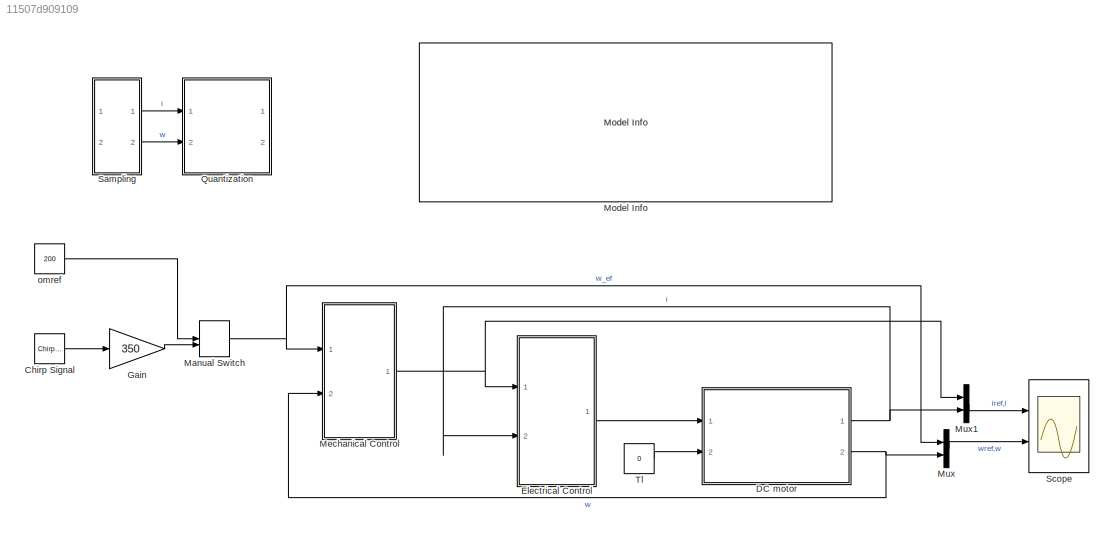
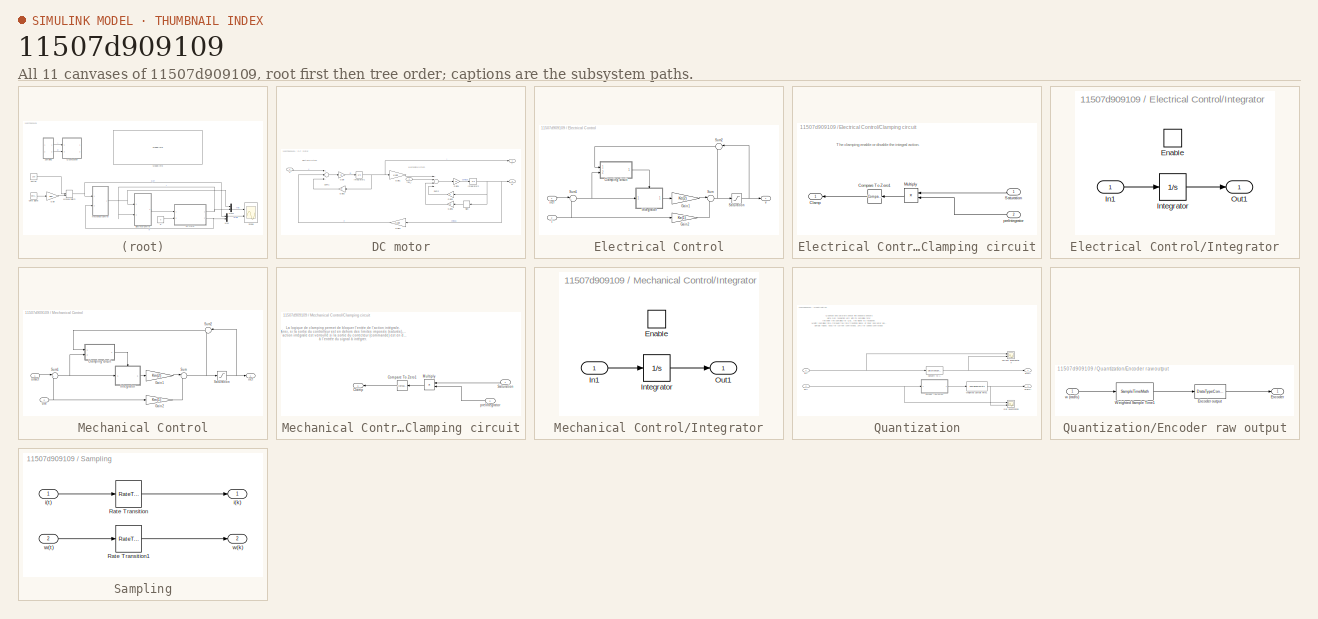
[diagram: thumbnail index - all 11 canvases of the model, root first then tree order]
MODEL slx_11507d909109
KIND model
CONFIG AbsTol = auto
CONFIG EnableMultiTasking = off
CONFIG FixedStep = auto
CONFIG MaxStep = Ts
CONFIG MinStep = auto
CONFIG RelTol = 1e-3
CONFIG SampleTimeConstraint = Unconstrained
CONFIG Solver = VariableStepAuto
CONFIG SolverName = VariableStepAuto
CONFIG StartTime = 0.0
CONFIG StopTime = Tf
BLOCK [Reference] Chirp Signal  REF=simulink/Sources/Chirp Signal
  Ports = [0, 1]
  SourceBlock = simulink/Sources/Chirp Signal
  SourceProductBaseCode = SL
  SourceProductName = Simulink
  SourceType = chirp
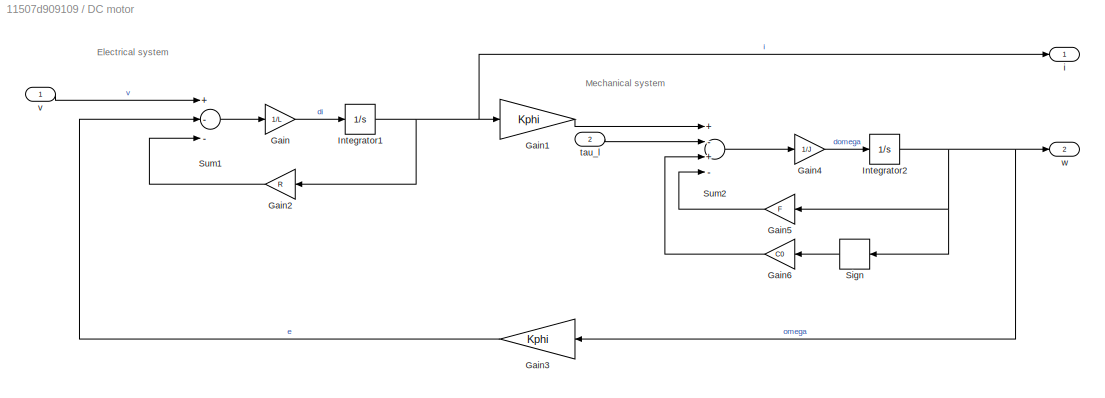
BLOCK [SubSystem] DC motor
  Ports = [2, 2]
  RequestExecContextInheritance = off
BLOCK [Gain] DC motor/Gain
  Gain = 1/L
  OutDataTypeStr = Inherit: Inherit via internal rule
  ParamDataTypeStr = Inherit: Inherit via internal rule
  SaturateOnIntegerOverflow = off
BLOCK [Gain] DC motor/Gain1
  Gain = Kphi
  OutDataTypeStr = Inherit: Inherit via internal rule
  ParamDataTypeStr = Inherit: Inherit via internal rule
  SaturateOnIntegerOverflow = off
BLOCK [Gain] DC motor/Gain2
  Gain = R
  OutDataTypeStr = Inherit: Inherit via internal rule
  ParamDataTypeStr = Inherit: Inherit via internal rule
  SaturateOnIntegerOverflow = off
BLOCK [Gain] DC motor/Gain3  
  Gain = Kphi
  OutDataTypeStr = Inherit: Inherit via internal rule
  ParamDataTypeStr = Inherit: Inherit via internal rule
  SaturateOnIntegerOverflow = off
BLOCK [Gain] DC motor/Gain4
  Gain = 1/J
  OutDataTypeStr = Inherit: Inherit via internal rule
  ParamDataTypeStr = Inherit: Inherit via internal rule
  SaturateOnIntegerOverflow = off
BLOCK [Gain] DC motor/Gain5
  Gain = F
  OutDataTypeStr = Inherit: Inherit via internal rule
  ParamDataTypeStr = Inherit: Inherit via internal rule
  SaturateOnIntegerOverflow = off
BLOCK [Gain] DC motor/Gain6
  Gain = C0
  OutDataTypeStr = Inherit: Inherit via internal rule
  ParamDataTypeStr = Inherit: Inherit via internal rule
  SaturateOnIntegerOverflow = off
BLOCK [Integrator] DC motor/Integrator1
  Ports = [1, 1]
BLOCK [Integrator] DC motor/Integrator2
  Ports = [1, 1]
BLOCK [Signum] DC motor/Sign
BLOCK [Sum] DC motor/Sum1
  InputSameDT = off
  Inputs = +--
  OutDataTypeStr = Inherit: Inherit via internal rule
  Ports = [3, 1]
  SaturateOnIntegerOverflow = off
BLOCK [Sum] DC motor/Sum2
  InputSameDT = off
  Inputs = +-+-
  OutDataTypeStr = Inherit: Inherit via internal rule
  Ports = [4, 1]
  SaturateOnIntegerOverflow = off
BLOCK [Outport] DC motor/i
  IconDisplay = Port number
BLOCK [Inport] DC motor/tau_l
  IconDisplay = Port number
  Port = 2
BLOCK [Inport] DC motor/v
  IconDisplay = Port number
  SampleTime = 0
BLOCK [Outport] DC motor/w
  IconDisplay = Port number
  Port = 2
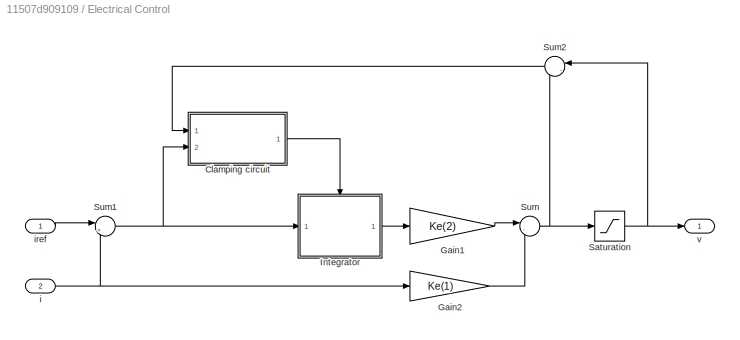
BLOCK [SubSystem] Electrical Control
  Ports = [2, 1]
  RequestExecContextInheritance = off
BLOCK [SubSystem] Electrical Control/Clamping circuit
  Ports = [2, 1]
  RequestExecContextInheritance = off
BLOCK [Outport] Electrical Control/Clamping circuit/Clamp
  DisableCoverage = on
  IconDisplay = Port number
BLOCK [Reference] Electrical Control/Clamping circuit/Compare To Zero1  REF=simulink/Logic and Bit
Operations/Compare
To Zero
  Ports = [1, 1]
  SourceBlock = simulink/Logic and Bit\nOperations/Compare\nTo Zero
  SourceProductBaseCode = SL
  SourceProductName = Simulink
  SourceType = Compare To Zero
BLOCK [Product] Electrical Control/Clamping circuit/Multiply
  InputSameDT = off
  OutDataTypeStr = Inherit: Inherit via internal rule
  Ports = [2, 1]
  RndMeth = Floor
  SaturateOnIntegerOverflow = off
BLOCK [Inport] Electrical Control/Clamping circuit/Saturation
  DisableCoverage = on
  IconDisplay = Port number
BLOCK [Inport] Electrical Control/Clamping circuit/preIntegrator
  DisableCoverage = on
  IconDisplay = Port number
  Port = 2
  VarSizeSig = No
BLOCK [Gain] Electrical Control/Gain1
  Gain = Ke(2)
  OutDataTypeStr = Inherit: Inherit via internal rule
  ParamDataTypeStr = Inherit: Inherit via internal rule
  SaturateOnIntegerOverflow = off
BLOCK [Gain] Electrical Control/Gain2
  Gain = Ke(1)
  OutDataTypeStr = Inherit: Inherit via internal rule
  ParamDataTypeStr = Inherit: Inherit via internal rule
  SaturateOnIntegerOverflow = off
BLOCK [SubSystem] Electrical Control/Integrator
  Ports = [1, 1, 1]
  RequestExecContextInheritance = off
BLOCK [EnablePort] Electrical Control/Integrator/Enable
  Ports = []
BLOCK [Inport] Electrical Control/Integrator/In1
  IconDisplay = Port number
BLOCK [Integrator] Electrical Control/Integrator/Integrator
  Ports = [1, 1]
BLOCK [Outport] Electrical Control/Integrator/Out1
  IconDisplay = Port number
BLOCK [Saturate] Electrical Control/Saturation
  InputPortMap = u0
  LowerLimit = Vmin
  Ports = [1, 1]
  UpperLimit = Vmax
BLOCK [Sum] Electrical Control/Sum
  IconShape = round
  InputSameDT = off
  Inputs = |--
  OutDataTypeStr = Inherit: Inherit via internal rule
  Ports = [2, 1]
  SaturateOnIntegerOverflow = off
BLOCK [Sum] Electrical Control/Sum1
  IconShape = round
  InputSameDT = off
  Inputs = |+-
  OutDataTypeStr = Inherit: Inherit via internal rule
  Ports = [2, 1]
  SaturateOnIntegerOverflow = off
BLOCK [Sum] Electrical Control/Sum2
  AccumDataTypeStr = Inherit: Same as first input
  IconShape = round
  InputSameDT = off
  Inputs = |-+
  OutDataTypeStr = Inherit: Same as accumulator
  Ports = [2, 1]
  SaturateOnIntegerOverflow = off
BLOCK [Inport] Electrical Control/i
  IconDisplay = Port number
  Port = 2
BLOCK [Inport] Electrical Control/iref
  IconDisplay = Port number
BLOCK [Outport] Electrical Control/v
  IconDisplay = Port number
BLOCK [Gain] Gain
  Gain = 350
  OutDataTypeStr = Inherit: Inherit via back propagation
  ParamDataTypeStr = Inherit: Inherit via internal rule
  SaturateOnIntegerOverflow = off
BLOCK [ManualSwitch] Manual Switch
  CurrentSetting = 0
BLOCK [SubSystem] Mechanical Control
  Ports = [2, 1]
  RequestExecContextInheritance = off
BLOCK [SubSystem] Mechanical Control/Clamping circuit
  Ports = [2, 1]
  RequestExecContextInheritance = off
BLOCK [Outport] Mechanical Control/Clamping circuit/Clamp
  DisableCoverage = on
  IconDisplay = Port number
BLOCK [Reference] Mechanical Control/Clamping circuit/Compare To Zero1  REF=simulink/Logic and Bit
Operations/Compare
To Zero
  Ports = [1, 1]
  SourceBlock = simulink/Logic and Bit\nOperations/Compare\nTo Zero
  SourceProductBaseCode = SL
  SourceProductName = Simulink
  SourceType = Compare To Zero
BLOCK [Product] Mechanical Control/Clamping circuit/Multiply
  InputSameDT = off
  OutDataTypeStr = Inherit: Inherit via internal rule
  Ports = [2, 1]
  RndMeth = Floor
  SaturateOnIntegerOverflow = off
BLOCK [Inport] Mechanical Control/Clamping circuit/Saturation
  DisableCoverage = on
  IconDisplay = Port number
BLOCK [Inport] Mechanical Control/Clamping circuit/preIntegrator
  DisableCoverage = on
  IconDisplay = Port number
  Port = 2
  VarSizeSig = No
BLOCK [Gain] Mechanical Control/Gain1
  Gain = Km(2)
  OutDataTypeStr = Inherit: Inherit via internal rule
  ParamDataTypeStr = Inherit: Inherit via internal rule
  SaturateOnIntegerOverflow = off
BLOCK [Gain] Mechanical Control/Gain2
  Gain = Km(1)
  OutDataTypeStr = Inherit: Inherit via internal rule
  ParamDataTypeStr = Inherit: Inherit via internal rule
  SaturateOnIntegerOverflow = off
BLOCK [SubSystem] Mechanical Control/Integrator
  Ports = [1, 1, 1]
  RequestExecContextInheritance = off
BLOCK [EnablePort] Mechanical Control/Integrator/Enable
  Ports = []
BLOCK [Inport] Mechanical Control/Integrator/In1
  IconDisplay = Port number
BLOCK [Integrator] Mechanical Control/Integrator/Integrator
  Ports = [1, 1]
BLOCK [Outport] Mechanical Control/Integrator/Out1
  IconDisplay = Port number
BLOCK [Saturate] Mechanical Control/Saturation
  InputPortMap = u0
  LowerLimit = Imin
  Ports = [1, 1]
  UpperLimit = Imax
BLOCK [Sum] Mechanical Control/Sum
  IconShape = round
  InputSameDT = off
  Inputs = |--
  OutDataTypeStr = Inherit: Inherit via internal rule
  Ports = [2, 1]
  SaturateOnIntegerOverflow = off
BLOCK [Sum] Mechanical Control/Sum1
  IconShape = round
  InputSameDT = off
  Inputs = |+-
  OutDataTypeStr = Inherit: Inherit via internal rule
  Ports = [2, 1]
  SaturateOnIntegerOverflow = off
BLOCK [Sum] Mechanical Control/Sum2
  AccumDataTypeStr = Inherit: Same as first input
  IconShape = round
  InputSameDT = off
  Inputs = |-+
  OutDataTypeStr = Inherit: Same as accumulator
  Ports = [2, 1]
  SaturateOnIntegerOverflow = off
BLOCK [Outport] Mechanical Control/iref
  IconDisplay = Port number
BLOCK [Inport] Mechanical Control/om
  IconDisplay = Port number
  Port = 2
BLOCK [Inport] Mechanical Control/omref
  IconDisplay = Port number
BLOCK [Reference] Model Info  REF=simulink/Model-Wide
Utilities/Model Info
  Ports = []
  SourceBlock = simulink/Model-Wide\nUtilities/Model Info
  SourceProductBaseCode = SL
  SourceProductName = Simulink
  SourceType = CMBlock
BLOCK [Mux] Mux
  DisplayOption = bar
  Inputs = 2
  Ports = [2, 1]
BLOCK [Mux] Mux1
  DisplayOption = bar
  Inputs = 2
  Ports = [2, 1]
BLOCK [SubSystem] Quantization
  Commented = on
  Ports = [2, 2]
  RequestExecContextInheritance = off
BLOCK [DataTypeConversion] Quantization/Convert to A
  LockScale = on
  OutDataTypeStr = fixdt(1,16,4.4/32768,0)
  RndMeth = Floor
BLOCK [Scope] Quantization/Current quantization
  Floating = off
  NumInputPorts = 2
  Ports = [2]
  ScopeSpecificationString = Simulink.scopes.TimeScopeBlockCfg('CurrentConfiguration', extmgr.ConfigurationSet(extmgr.Configuration('Core','General UI',true),extmgr.Configuration('Core','Source UI',true),extmgr.Configuration('Sources','WiredSimulink',true,'DataLoggingVariableName','ScopeData1'),extmgr.Configuration('Visuals','Time Domain',true,'SerializedDisplays',{struct('MinYLimReal','-4.53222','MaxYLimReal','18.09714','YLa...<+1513ch>
BLOCK [SubSystem] Quantization/Encoder raw output
  Ports = [1, 1]
  RequestExecContextInheritance = off
BLOCK [Outport] Quantization/Encoder raw output/Encoder
  IconDisplay = Port number
BLOCK [DataTypeConversion] Quantization/Encoder raw output/Encoder output
  LockScale = on
  OutDataTypeStr = int16
  RndMeth = Floor
BLOCK [SampleTimeMath] Quantization/Encoder raw output/Weighted Sample Time1
  TsampMathOp = *
  weightValue = 1000/pi
BLOCK [Inport] Quantization/Encoder raw output/w (rad//s)
  IconDisplay = Port number
BLOCK [Scope] Quantization/QEI quantization
  Floating = off
  NumInputPorts = 2
  Ports = [2]
  ScopeSpecificationString = Simulink.scopes.TimeScopeBlockCfg('CurrentConfiguration', extmgr.ConfigurationSet(extmgr.Configuration('Core','General UI',true),extmgr.Configuration('Core','Source UI',true),extmgr.Configuration('Sources','WiredSimulink',true,'DataLoggingVariableName','ScopeData2'),extmgr.Configuration('Visuals','Time Domain',true,'SerializedDisplays',{struct('MinYLimReal','-26.77669','MaxYLimReal','240.99021','Y...<+1530ch>
BLOCK [SampleTimeMath] Quantization/Weighted Sample Time1
  TsampMathImp = Offline Scaling Adjustment
  TsampMathOp = /
  weightValue = 1000/pi
BLOCK [Inport] Quantization/i(t)
  IconDisplay = Port number
BLOCK [Outport] Quantization/q(i(k))
  IconDisplay = Port number
BLOCK [Outport] Quantization/q(w(k))
  IconDisplay = Port number
  Port = 2
BLOCK [Inport] Quantization/w(t)
  IconDisplay = Port number
  Port = 2
BLOCK [SubSystem] Sampling
  Commented = on
  Ports = [2, 2]
  RequestExecContextInheritance = off
BLOCK [RateTransition] Sampling/Rate Transition
  Deterministic = off
  OutPortSampleTime = Ts
BLOCK [RateTransition] Sampling/Rate Transition1
  Deterministic = off
  OutPortSampleTime = TsMeca
BLOCK [Outport] Sampling/i(k)
  IconDisplay = Port number
BLOCK [Inport] Sampling/i(t)
  IconDisplay = Port number
BLOCK [Outport] Sampling/w(k)
  IconDisplay = Port number
  Port = 2
BLOCK [Inport] Sampling/w(t)
  IconDisplay = Port number
  Port = 2
BLOCK [Scope] Scope
  Floating = off
  NumInputPorts = 2
  Ports = [2]
  ScopeSpecificationString = Simulink.scopes.TimeScopeBlockCfg('CurrentConfiguration', extmgr.ConfigurationSet(extmgr.Configuration('Core','General UI',true),extmgr.Configuration('Core','Source UI',true),extmgr.Configuration('Sources','WiredSimulink',true),extmgr.Configuration('Visuals','Time Domain',true,'SerializedDisplays',{struct('MinYLimReal','-5.375','MaxYLimReal','5.375','YLabelReal','','MinYLimMag','0.00000','MaxYLimM...<+1967ch>
BLOCK [Constant] Tl
  Value = 0
BLOCK [Constant] omref
  OutDataTypeStr = Inherit: Inherit via back propagation
  Value = 200
ANNOTATION DC motor: Electrical system
ANNOTATION DC motor: Mechanical system
ANNOTATION Electrical Control/Clamping circuit: The clamping enable or disable the integral action.
ANNOTATION Mechanical Control/Clamping circuit: La logique de clamping permet de bloquer l'entée de l'action intégrale. Ainsi, si la sortie du controlleur est en dehors des limites imposés (saturée), alors l'action intégrale du correcteur est verrouyé (clamping). L'action intégrale est verroullé si la sortie du correcteur (commande) est en dehors des saturations et que le signe de cette sortie est égale à l'entrée du signal à intégrer.
ANNOTATION Quantization: Quantize and saturate sensor like onboard sensors Note QEI resolution vary with its sampling rate: the lower the sampling for QEI, the higher its resolution. Modify sampling rate (through the rate transition block) of inner and outer loop and see impact on simulation Default values: 50us for current control loop, 2ms for speed control loop
LINE Chirp Signal:1 -> Gain:1
LINE DC motor/Gain1:1 -> DC motor/Sum2:1
LINE DC motor/Gain2:1 -> DC motor/Sum1:3
LINE DC motor/Gain3  :1 -> DC motor/Sum1:2
LINE DC motor/Gain4:1 -> DC motor/Integrator2:1
LINE DC motor/Gain5:1 -> DC motor/Sum2:4
LINE DC motor/Gain6:1 -> DC motor/Sum2:3
LINE DC motor/Gain:1 -> DC motor/Integrator1:1
NET DC motor/Integrator1:1 -> DC motor/Gain1:1, DC motor/Gain2:1, DC motor/i:1
NET DC motor/Integrator2:1 -> DC motor/Gain3  :1, DC motor/Gain5:1, DC motor/Sign:1, DC motor/w:1
LINE DC motor/Sign:1 -> DC motor/Gain6:1
LINE DC motor/Sum1:1 -> DC motor/Gain:1
LINE DC motor/Sum2:1 -> DC motor/Gain4:1
LINE DC motor/tau_l:1 -> DC motor/Sum2:2
LINE DC motor/v:1 -> DC motor/Sum1:1
NET DC motor:1 -> Electrical Control:2, Mux1:2
NET DC motor:2 -> Mechanical Control:2, Mux:2
LINE Electrical Control/Clamping circuit/Compare To Zero1:1 -> Electrical Control/Clamping circuit/Clamp:1
LINE Electrical Control/Clamping circuit/Multiply:1 -> Electrical Control/Clamping circuit/Compare To Zero1:1
LINE Electrical Control/Clamping circuit/Saturation:1 -> Electrical Control/Clamping circuit/Multiply:1
LINE Electrical Control/Clamping circuit/preIntegrator:1 -> Electrical Control/Clamping circuit/Multiply:2
LINE Electrical Control/Clamping circuit:1 -> Electrical Control/Integrator:enable
LINE Electrical Control/Gain1:1 -> Electrical Control/Sum:1
LINE Electrical Control/Gain2:1 -> Electrical Control/Sum:2
LINE Electrical Control/Integrator/In1:1 -> Electrical Control/Integrator/Integrator:1
LINE Electrical Control/Integrator/Integrator:1 -> Electrical Control/Integrator/Out1:1
LINE Electrical Control/Integrator:1 -> Electrical Control/Gain1:1
NET Electrical Control/Saturation:1 -> Electrical Control/Sum2:1, Electrical Control/v:1
NET Electrical Control/Sum1:1 -> Electrical Control/Clamping circuit:2, Electrical Control/Integrator:1
LINE Electrical Control/Sum2:1 -> Electrical Control/Clamping circuit:1
NET Electrical Control/Sum:1 -> Electrical Control/Saturation:1, Electrical Control/Sum2:2
NET Electrical Control/i:1 -> Electrical Control/Gain2:1, Electrical Control/Sum1:2
LINE Electrical Control/iref:1 -> Electrical Control/Sum1:1
LINE Electrical Control:1 -> DC motor:1
LINE Gain:1 -> Manual Switch:2
NET Manual Switch:1 -> Mechanical Control:1, Mux:1
LINE Mechanical Control/Clamping circuit/Compare To Zero1:1 -> Mechanical Control/Clamping circuit/Clamp:1
LINE Mechanical Control/Clamping circuit/Multiply:1 -> Mechanical Control/Clamping circuit/Compare To Zero1:1
LINE Mechanical Control/Clamping circuit/Saturation:1 -> Mechanical Control/Clamping circuit/Multiply:1
LINE Mechanical Control/Clamping circuit/preIntegrator:1 -> Mechanical Control/Clamping circuit/Multiply:2
LINE Mechanical Control/Clamping circuit:1 -> Mechanical Control/Integrator:enable
LINE Mechanical Control/Gain1:1 -> Mechanical Control/Sum:1
LINE Mechanical Control/Gain2:1 -> Mechanical Control/Sum:2
LINE Mechanical Control/Integrator/In1:1 -> Mechanical Control/Integrator/Integrator:1
LINE Mechanical Control/Integrator/Integrator:1 -> Mechanical Control/Integrator/Out1:1
LINE Mechanical Control/Integrator:1 -> Mechanical Control/Gain1:1
NET Mechanical Control/Saturation:1 -> Mechanical Control/Sum2:1, Mechanical Control/iref:1
NET Mechanical Control/Sum1:1 -> Mechanical Control/Clamping circuit:2, Mechanical Control/Integrator:1
LINE Mechanical Control/Sum2:1 -> Mechanical Control/Clamping circuit:1
NET Mechanical Control/Sum:1 -> Mechanical Control/Saturation:1, Mechanical Control/Sum2:2
NET Mechanical Control/om:1 -> Mechanical Control/Gain2:1, Mechanical Control/Sum1:2
LINE Mechanical Control/omref:1 -> Mechanical Control/Sum1:1
NET Mechanical Control:1 -> Electrical Control:1, Mux1:1
LINE Mux1:1 -> Scope:1
LINE Mux:1 -> Scope:2
NET Quantization/Convert to A:1 -> Quantization/Current quantization:2, Quantization/q(i(k)):1
LINE Quantization/Encoder raw output/Encoder output:1 -> Quantization/Encoder raw output/Encoder:1
LINE Quantization/Encoder raw output/Weighted Sample Time1:1 -> Quantization/Encoder raw output/Encoder output:1
LINE Quantization/Encoder raw output/w (rad//s):1 -> Quantization/Encoder raw output/Weighted Sample Time1:1
LINE Quantization/Encoder raw output:1 -> Quantization/Weighted Sample Time1:1
NET Quantization/Weighted Sample Time1:1 -> Quantization/QEI quantization:2, Quantization/q(w(k)):1
NET Quantization/i(t):1 -> Quantization/Convert to A:1, Quantization/Current quantization:1
NET Quantization/w(t):1 -> Quantization/Encoder raw output:1, Quantization/QEI quantization:1
LINE Sampling/Rate Transition1:1 -> Sampling/w(k):1
LINE Sampling/Rate Transition:1 -> Sampling/i(k):1
LINE Sampling/i(t):1 -> Sampling/Rate Transition:1
LINE Sampling/w(t):1 -> Sampling/Rate Transition1:1
LINE Sampling:1 -> Quantization:1
LINE Sampling:2 -> Quantization:2
LINE Tl:1 -> DC motor:2
LINE omref:1 -> Manual Switch:1
note: NET lines group one-source signal fan-out (src -> all destinations, sorted); 1:1 wires keep LINE
